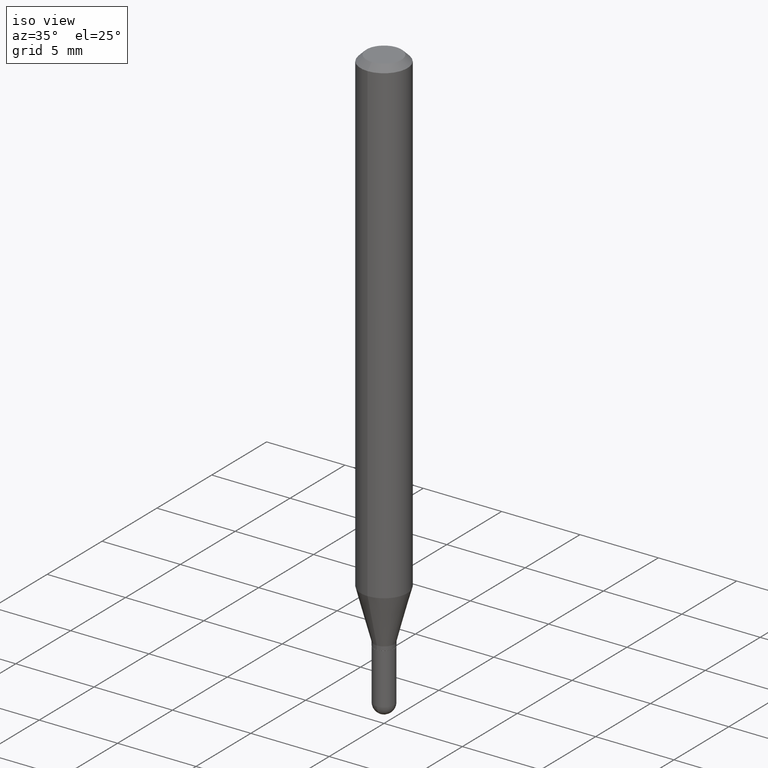
[diagram: clean part render]
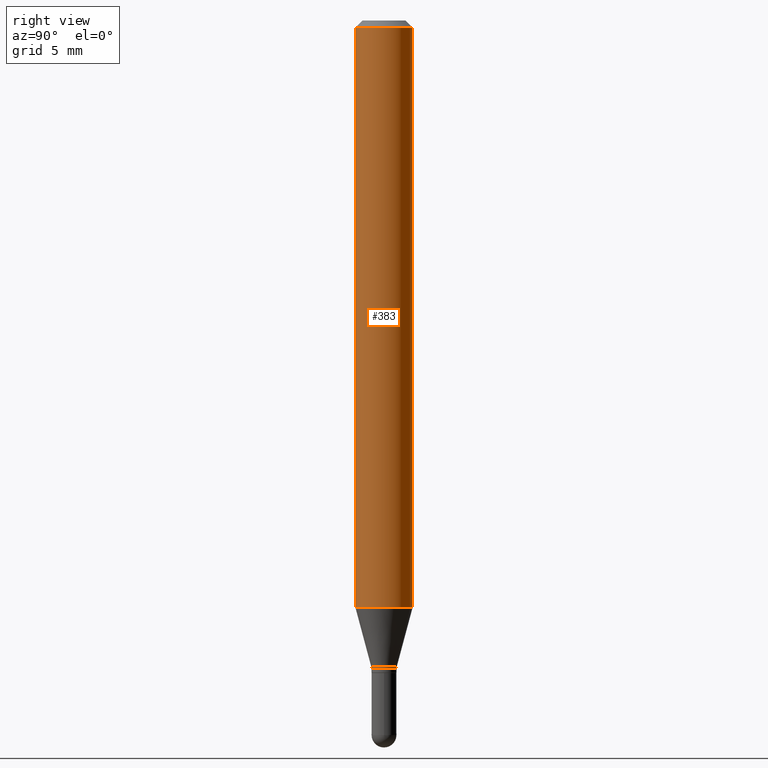
[diagram: tour spotlight — one face highlighted and labeled with its STEP entity id]
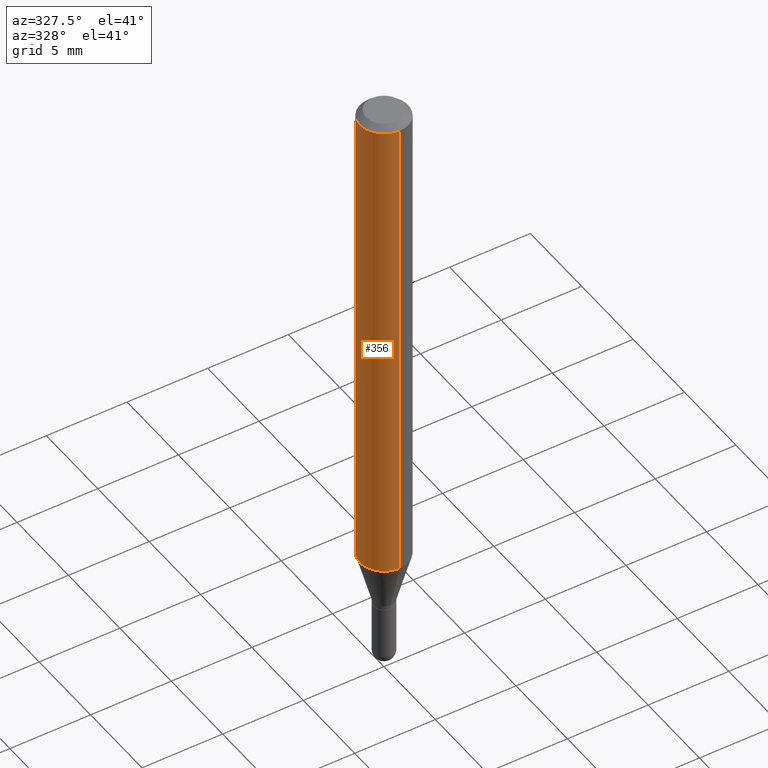
[diagram: tour spotlight — one face highlighted and labeled with its STEP entity id]
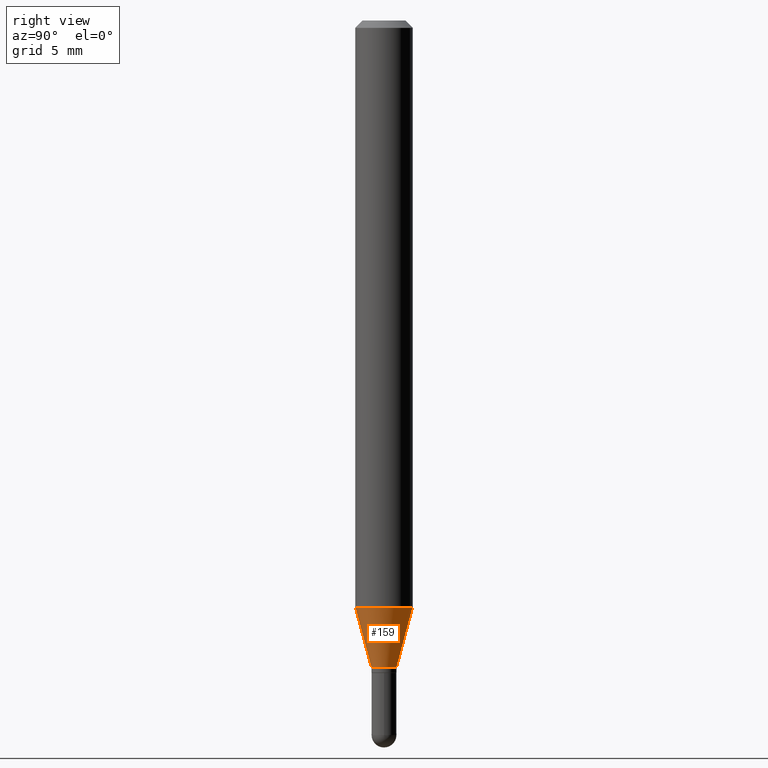
[diagram: tour spotlight — one face highlighted and labeled with its STEP entity id]
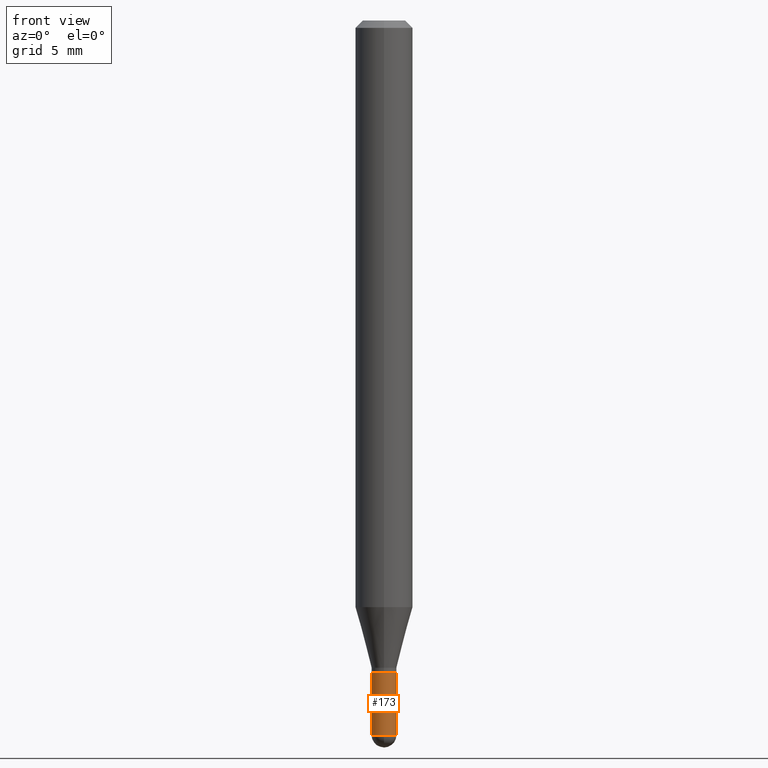
[diagram: tour spotlight — one face highlighted and labeled with its STEP entity id]
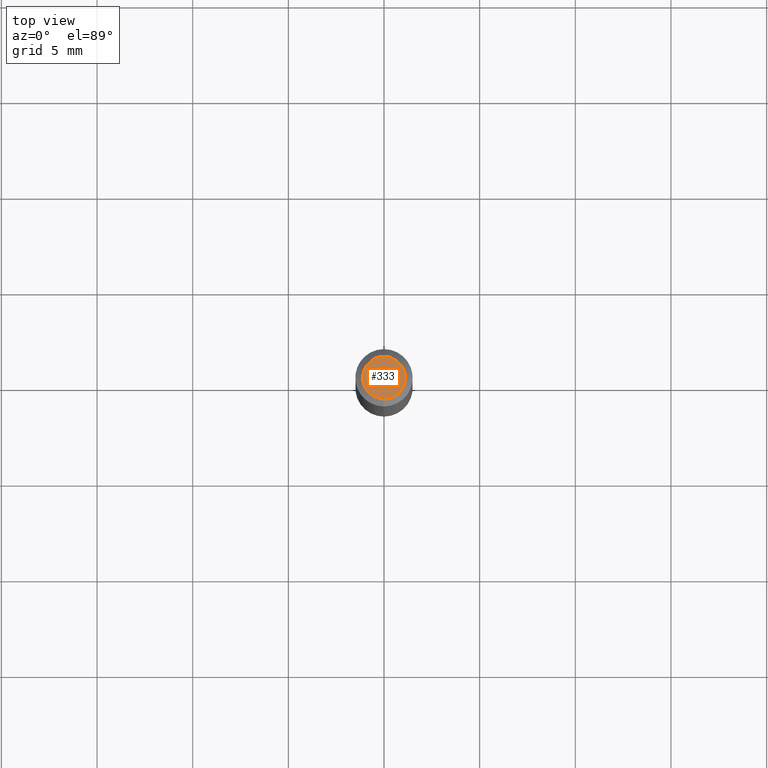
[diagram: tour spotlight — one face highlighted and labeled with its STEP entity id]
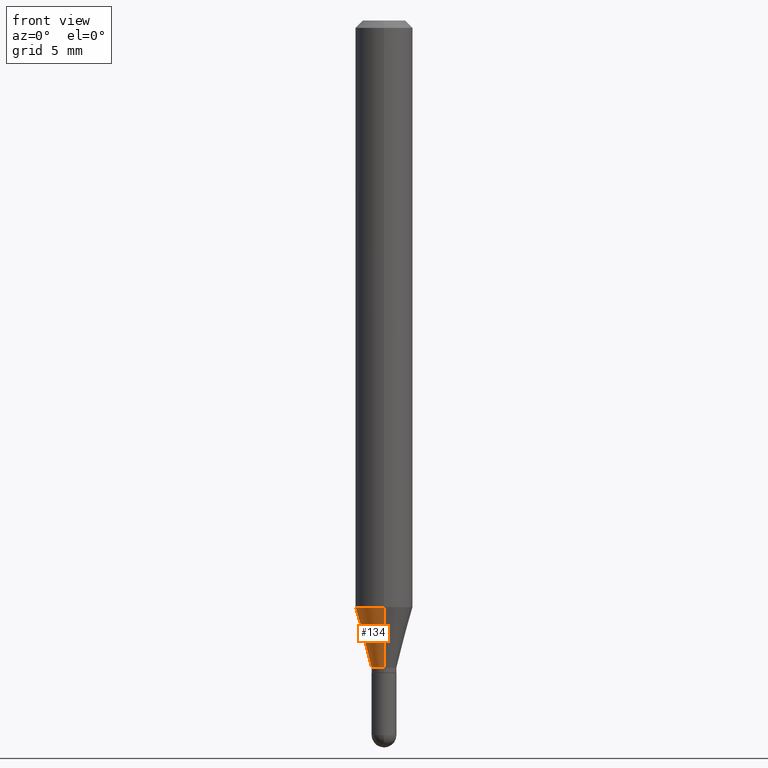
[diagram: tour spotlight — one face highlighted and labeled with its STEP entity id]
A machine part: a face-by-face anatomy tour. The part has 17 B-rep faces; the first image is the clean iso view, then the 6 largest visible faces are spotlighted one at a time (largest first), each with its STEP entity span.

Face 1 — right view, entity #383. In plain terms, the highlighted cylindrical surface (edge-blend (fillet) strip) has radius 1.4999 mm, axis along (-0, 0, 1).
Definition (entity closure, byte-faithful):
#22 = EDGE_CURVE ( 'NONE', #91, #501, #325, .T. ) ;
#26 = DIRECTION ( 'NONE',  ( -2.445504211915057935E-29, 3.491430635822728972E-15, 1.000000000000000000 ) ) ;
#71 = CARTESIAN_POINT ( 'NONE',  ( 2.952366508029308546E-29, -4.215074676251890726E-15, -1.207262900486820278 ) ) ;
#72 = EDGE_CURVE ( 'NONE', #107, #361, #509, .T. ) ;
#77 = CARTESIAN_POINT ( 'NONE',  ( 4.195754854663390985E-16, 0.05904999999999999832, -2.061689790453321353E-16 ) ) ;
#80 = DIRECTION ( 'NONE',  ( -2.445504211915058215E-29, 3.491430635822729367E-15, 1.000000000000000000 ) ) ;
#91 = VERTEX_POINT ( 'NONE', #337 ) ;
#96 = AXIS2_PLACEMENT_3D ( 'NONE', #71, #223, #114 ) ;
#106 = FACE_OUTER_BOUND ( 'NONE', #239, .T. ) ;
#107 = VERTEX_POINT ( 'NONE', #145 ) ;
#110 = VECTOR ( 'NONE', #80, 39.37007874015748143 ) ;
#111 = CYLINDRICAL_SURFACE ( 'NONE', #261, 0.05904999999999999832 ) ;
#114 = DIRECTION ( 'NONE',  ( -6.982962677686265922E-15, -1.000000000000000000, 4.626330217890369336E-15 ) ) ;
#145 = CARTESIAN_POINT ( 'NONE',  ( -4.123439461173445490E-16, -0.05905000000000423105, -1.207262900486820056 ) ) ;
#147 = DIRECTION ( 'NONE',  ( -6.982962677686265922E-15, -1.000000000000000000, 3.491430635822728972E-15 ) ) ;
#155 = DIRECTION ( 'NONE',  ( -2.445504211915058215E-29, 3.491430635822729367E-15, 1.000000000000000000 ) ) ;
#182 = CARTESIAN_POINT ( 'NONE',  ( 0.000000000000000000, 0.000000000000000000, 0.000000000000000000 ) ) ;
#190 = EDGE_CURVE ( 'NONE', #107, #91, #443, .T. ) ;
#221 = ORIENTED_EDGE ( 'NONE', *, *, #411, .T. ) ;
#223 = DIRECTION ( 'NONE',  ( -2.445504211915057935E-29, 3.491430635822728972E-15, 1.000000000000000000 ) ) ;
#235 = ORIENTED_EDGE ( 'NONE', *, *, #22, .F. ) ;
#239 = EDGE_LOOP ( 'NONE', ( #468, #221, #235, #436 ) ) ;
#250 = VECTOR ( 'NONE', #155, 39.37007874015748143 ) ;
#261 = AXIS2_PLACEMENT_3D ( 'NONE', #182, #26, #147 ) ;
#297 = DIRECTION ( 'NONE',  ( -2.445504211915057935E-29, 3.491430635822728972E-15, 1.000000000000000000 ) ) ;
#301 = CARTESIAN_POINT ( 'NONE',  ( 3.668256317872609375E-31, -5.237145953734125432E-17, -0.01500000000000009139 ) ) ;
#325 = CIRCLE ( 'NONE', #330, 0.05904999999999999832 ) ;
#330 = AXIS2_PLACEMENT_3D ( 'NONE', #301, #297, #456 ) ;
#337 = CARTESIAN_POINT ( 'NONE',  ( -4.123439461173736383E-16, -0.05905000000000005383, -0.01499999999999988495 ) ) ;
#361 = VERTEX_POINT ( 'NONE', #420 ) ;
#383 = ADVANCED_FACE ( 'NONE', ( #106 ), #111, .T. ) ;
#407 = CARTESIAN_POINT ( 'NONE',  ( -4.123439461173739834E-16, -0.05904999999999999832, 2.061689790453321353E-16 ) ) ;
#411 = EDGE_CURVE ( 'NONE', #361, #501, #428, .T. ) ;
#420 = CARTESIAN_POINT ( 'NONE',  ( 4.195754854663684343E-16, 0.05904999999999574478, -1.207262900486820278 ) ) ;
#428 = LINE ( 'NONE', #77, #110 ) ;
#436 = ORIENTED_EDGE ( 'NONE', *, *, #190, .F. ) ;
#443 = LINE ( 'NONE', #407, #250 ) ;
#456 = DIRECTION ( 'NONE',  ( -6.982962677686265922E-15, -1.000000000000000000, 3.505890868245046092E-15 ) ) ;
#468 = ORIENTED_EDGE ( 'NONE', *, *, #72, .T. ) ;
#500 = CARTESIAN_POINT ( 'NONE',  ( 4.195754854663688780E-16, 0.05904999999999994975, -0.01500000000000029955 ) ) ;
#501 = VERTEX_POINT ( 'NONE', #500 ) ;
#509 = CIRCLE ( 'NONE', #96, 0.05904999999999999832 ) ;

Face 2 — auxiliary view, entity #356. In plain terms, the highlighted cylindrical surface (edge-blend (fillet) strip) has radius 1.4999 mm, axis along (-0, 0, 1).
Definition (entity closure, byte-faithful):
#15 = ORIENTED_EDGE ( 'NONE', *, *, #199, .F. ) ;
#24 = AXIS2_PLACEMENT_3D ( 'NONE', #388, #143, #390 ) ;
#32 = CIRCLE ( 'NONE', #170, 0.05904999999999999832 ) ;
#33 = DIRECTION ( 'NONE',  ( -2.445504211915057935E-29, 3.491430635822728972E-15, 1.000000000000000000 ) ) ;
#34 = AXIS2_PLACEMENT_3D ( 'NONE', #104, #33, #258 ) ;
#77 = CARTESIAN_POINT ( 'NONE',  ( 4.195754854663390985E-16, 0.05904999999999999832, -2.061689790453321353E-16 ) ) ;
#80 = DIRECTION ( 'NONE',  ( -2.445504211915058215E-29, 3.491430635822729367E-15, 1.000000000000000000 ) ) ;
#91 = VERTEX_POINT ( 'NONE', #337 ) ;
#93 = DIRECTION ( 'NONE',  ( -2.445504211915057935E-29, 3.491430635822728972E-15, 1.000000000000000000 ) ) ;
#104 = CARTESIAN_POINT ( 'NONE',  ( 0.000000000000000000, 0.000000000000000000, 0.000000000000000000 ) ) ;
#107 = VERTEX_POINT ( 'NONE', #145 ) ;
#110 = VECTOR ( 'NONE', #80, 39.37007874015748143 ) ;
#116 = ORIENTED_EDGE ( 'NONE', *, *, #190, .T. ) ;
#125 = EDGE_CURVE ( 'NONE', #361, #107, #245, .T. ) ;
#143 = DIRECTION ( 'NONE',  ( -2.445504211915057935E-29, 3.491430635822728972E-15, 1.000000000000000000 ) ) ;
#145 = CARTESIAN_POINT ( 'NONE',  ( -4.123439461173445490E-16, -0.05905000000000423105, -1.207262900486820056 ) ) ;
#155 = DIRECTION ( 'NONE',  ( -2.445504211915058215E-29, 3.491430635822729367E-15, 1.000000000000000000 ) ) ;
#165 = EDGE_LOOP ( 'NONE', ( #326, #364, #116, #15 ) ) ;
#170 = AXIS2_PLACEMENT_3D ( 'NONE', #198, #93, #279 ) ;
#190 = EDGE_CURVE ( 'NONE', #107, #91, #443, .T. ) ;
#198 = CARTESIAN_POINT ( 'NONE',  ( 3.668256317872609375E-31, -5.237145953734125432E-17, -0.01500000000000009139 ) ) ;
#199 = EDGE_CURVE ( 'NONE', #501, #91, #32, .T. ) ;
#218 = FACE_OUTER_BOUND ( 'NONE', #165, .T. ) ;
#245 = CIRCLE ( 'NONE', #24, 0.05904999999999999832 ) ;
#250 = VECTOR ( 'NONE', #155, 39.37007874015748143 ) ;
#258 = DIRECTION ( 'NONE',  ( -6.982962677686265922E-15, -1.000000000000000000, 3.491430635822728972E-15 ) ) ;
#279 = DIRECTION ( 'NONE',  ( -6.982962677686265922E-15, -1.000000000000000000, 3.505890868245046092E-15 ) ) ;
#326 = ORIENTED_EDGE ( 'NONE', *, *, #411, .F. ) ;
#337 = CARTESIAN_POINT ( 'NONE',  ( -4.123439461173736383E-16, -0.05905000000000005383, -0.01499999999999988495 ) ) ;
#356 = ADVANCED_FACE ( 'NONE', ( #218 ), #378, .T. ) ;
#361 = VERTEX_POINT ( 'NONE', #420 ) ;
#364 = ORIENTED_EDGE ( 'NONE', *, *, #125, .T. ) ;
#378 = CYLINDRICAL_SURFACE ( 'NONE', #34, 0.05904999999999999832 ) ;
#388 = CARTESIAN_POINT ( 'NONE',  ( 2.952366508029308546E-29, -4.215074676251890726E-15, -1.207262900486820278 ) ) ;
#390 = DIRECTION ( 'NONE',  ( -6.982962677686265922E-15, -1.000000000000000000, 4.626330217890369336E-15 ) ) ;
#407 = CARTESIAN_POINT ( 'NONE',  ( -4.123439461173739834E-16, -0.05904999999999999832, 2.061689790453321353E-16 ) ) ;
#411 = EDGE_CURVE ( 'NONE', #361, #501, #428, .T. ) ;
#420 = CARTESIAN_POINT ( 'NONE',  ( 4.195754854663684343E-16, 0.05904999999999574478, -1.207262900486820278 ) ) ;
#428 = LINE ( 'NONE', #77, #110 ) ;
#443 = LINE ( 'NONE', #407, #250 ) ;
#500 = CARTESIAN_POINT ( 'NONE',  ( 4.195754854663688780E-16, 0.05904999999999994975, -0.01500000000000029955 ) ) ;
#501 = VERTEX_POINT ( 'NONE', #500 ) ;

Face 3 — right view, entity #159. In plain terms, the highlighted conical surface has half-angle 15 deg.
Definition (entity closure, byte-faithful):
#12 = ORIENTED_EDGE ( 'NONE', *, *, #72, .F. ) ;
#16 = DIRECTION ( 'NONE',  ( -2.445504211915057935E-29, 3.491430635822728972E-15, 1.000000000000000000 ) ) ;
#30 = CARTESIAN_POINT ( 'NONE',  ( -1.787638445487334432E-16, -0.02560000000000431028, -1.332100000000000062 ) ) ;
#65 = VECTOR ( 'NONE', #503, 39.37007874015748143 ) ;
#71 = CARTESIAN_POINT ( 'NONE',  ( 2.952366508029308546E-29, -4.215074676251890726E-15, -1.207262900486820278 ) ) ;
#72 = EDGE_CURVE ( 'NONE', #107, #361, #509, .T. ) ;
#96 = AXIS2_PLACEMENT_3D ( 'NONE', #71, #223, #114 ) ;
#98 = EDGE_CURVE ( 'NONE', #483, #406, #350, .T. ) ;
#107 = VERTEX_POINT ( 'NONE', #145 ) ;
#112 = CARTESIAN_POINT ( 'NONE',  ( 3.257656160692049411E-29, -4.650934749979458019E-15, -1.332100000000000062 ) ) ;
#114 = DIRECTION ( 'NONE',  ( -6.982962677686265922E-15, -1.000000000000000000, 4.626330217890369336E-15 ) ) ;
#140 = CARTESIAN_POINT ( 'NONE',  ( 1.818989403546157563E-16, 0.02559999999999500522, -1.332100000000000062 ) ) ;
#144 = CARTESIAN_POINT ( 'NONE',  ( -1.787638445487334432E-16, -0.02560000000000431028, -1.332100000000000062 ) ) ;
#145 = CARTESIAN_POINT ( 'NONE',  ( -4.123439461173445490E-16, -0.05905000000000423105, -1.207262900486820056 ) ) ;
#159 = ADVANCED_FACE ( 'NONE', ( #506 ), #412, .T. ) ;
#164 = ORIENTED_EDGE ( 'NONE', *, *, #472, .T. ) ;
#179 = LINE ( 'NONE', #140, #65 ) ;
#223 = DIRECTION ( 'NONE',  ( -2.445504211915057935E-29, 3.491430635822728972E-15, 1.000000000000000000 ) ) ;
#254 = DIRECTION ( 'NONE',  ( -6.982962677686265922E-15, -1.000000000000000000, 0.000000000000000000 ) ) ;
#268 = ORIENTED_EDGE ( 'NONE', *, *, #465, .F. ) ;
#277 = ORIENTED_EDGE ( 'NONE', *, *, #98, .T. ) ;
#281 = DIRECTION ( 'NONE',  ( -6.982962677686265922E-15, -1.000000000000000000, 0.000000000000000000 ) ) ;
#284 = AXIS2_PLACEMENT_3D ( 'NONE', #112, #494, #254 ) ;
#300 = CARTESIAN_POINT ( 'NONE',  ( 3.007372129104922925E-16, 0.02559999999999500522, -1.332100000000000062 ) ) ;
#342 = LINE ( 'NONE', #30, #373 ) ;
#350 = CIRCLE ( 'NONE', #284, 0.02559999999999965775 ) ;
#361 = VERTEX_POINT ( 'NONE', #420 ) ;
#373 = VECTOR ( 'NONE', #466, 39.37007874015748143 ) ;
#406 = VERTEX_POINT ( 'NONE', #300 ) ;
#408 = EDGE_LOOP ( 'NONE', ( #277, #164, #12, #268 ) ) ;
#412 = CONICAL_SURFACE ( 'NONE', #486, 0.02559999999999965775, 0.2617993877991502960 ) ;
#420 = CARTESIAN_POINT ( 'NONE',  ( 4.195754854663684343E-16, 0.05904999999999574478, -1.207262900486820278 ) ) ;
#426 = CARTESIAN_POINT ( 'NONE',  ( 3.257656160692049411E-29, -4.650934749979458019E-15, -1.332100000000000062 ) ) ;
#465 = EDGE_CURVE ( 'NONE', #483, #107, #342, .T. ) ;
#466 = DIRECTION ( 'NONE',  ( -1.807323732225330139E-15, -0.2588190451025181860, 0.9659258262890689783 ) ) ;
#472 = EDGE_CURVE ( 'NONE', #406, #361, #179, .T. ) ;
#483 = VERTEX_POINT ( 'NONE', #144 ) ;
#486 = AXIS2_PLACEMENT_3D ( 'NONE', #426, #16, #281 ) ;
#494 = DIRECTION ( 'NONE',  ( -2.445504211915057935E-29, 3.491430635822728972E-15, 1.000000000000000000 ) ) ;
#503 = DIRECTION ( 'NONE',  ( 1.839019923739600315E-15, 0.2588190451025249583, 0.9659258262890670910 ) ) ;
#506 = FACE_OUTER_BOUND ( 'NONE', #408, .T. ) ;
#509 = CIRCLE ( 'NONE', #96, 0.05904999999999999832 ) ;

Face 4 — front view, entity #173. In plain terms, the highlighted cylindrical surface (edge-blend (fillet) strip) has radius 0.6502 mm, axis along (-0, 0, 1).
Definition (entity closure, byte-faithful):
#1 = VERTEX_POINT ( 'NONE', #137 ) ;
#2 = DIRECTION ( 'NONE',  ( 1.000000000000000000, -6.982962677686267499E-15, 4.876176775795935232E-29 ) ) ;
#6 = CYLINDRICAL_SURFACE ( 'NONE', #44, 0.02560000000000000817 ) ;
#8 = VERTEX_POINT ( 'NONE', #379 ) ;
#25 = AXIS2_PLACEMENT_3D ( 'NONE', #222, #384, #340 ) ;
#27 = EDGE_LOOP ( 'NONE', ( #352, #382, #188, #480, #280 ) ) ;
#44 = AXIS2_PLACEMENT_3D ( 'NONE', #89, #196, #2 ) ;
#48 = FACE_OUTER_BOUND ( 'NONE', #27, .T. ) ;
#54 = CIRCLE ( 'NONE', #25, 0.02560000000000001164 ) ;
#60 = EDGE_CURVE ( 'NONE', #8, #1, #109, .T. ) ;
#84 = AXIS2_PLACEMENT_3D ( 'NONE', #403, #359, #157 ) ;
#85 = EDGE_CURVE ( 'NONE', #192, #115, #191, .T. ) ;
#89 = CARTESIAN_POINT ( 'NONE',  ( 0.000000000000000000, 0.000000000000000000, 0.000000000000000000 ) ) ;
#97 = CIRCLE ( 'NONE', #138, 0.02560000000000000470 ) ;
#105 = DIRECTION ( 'NONE',  ( -2.445468806185136877E-29, 3.491481338843145188E-15, 1.000000000000000000 ) ) ;
#109 = LINE ( 'NONE', #180, #421 ) ;
#115 = VERTEX_POINT ( 'NONE', #259 ) ;
#117 = DIRECTION ( 'NONE',  ( 1.000000000000000000, -6.982962677686263555E-15, 0.000000000000000000 ) ) ;
#137 = CARTESIAN_POINT ( 'NONE',  ( -0.02560000000000000470, -4.729044136795240808E-15, -1.342600000000000016 ) ) ;
#138 = AXIS2_PLACEMENT_3D ( 'NONE', #470, #354, #117 ) ;
#157 = DIRECTION ( 'NONE',  ( 1.000000000000000000, -6.982962677686261189E-15, 0.000000000000000000 ) ) ;
#173 = ADVANCED_FACE ( 'NONE', ( #48 ), #6, .T. ) ;
#180 = CARTESIAN_POINT ( 'NONE',  ( -0.02560000000000000817, 1.818989403545857056E-16, -1.259247383105256314E-30 ) ) ;
#188 = ORIENTED_EDGE ( 'NONE', *, *, #490, .T. ) ;
#191 = LINE ( 'NONE', #422, #404 ) ;
#192 = VERTEX_POINT ( 'NONE', #469 ) ;
#196 = DIRECTION ( 'NONE',  ( -2.445468806185136597E-29, 3.491481338843145583E-15, 1.000000000000000000 ) ) ;
#222 = CARTESIAN_POINT ( 'NONE',  ( 3.596061879495243061E-29, -5.134223308768844733E-15, -1.470499999999999696 ) ) ;
#228 = EDGE_CURVE ( 'NONE', #8, #267, #298, .T. ) ;
#231 = DIRECTION ( 'NONE',  ( -2.445468806185136877E-29, 3.491481338843145188E-15, 1.000000000000000000 ) ) ;
#259 = CARTESIAN_POINT ( 'NONE',  ( 0.02560000000000000470, -4.866426690079575830E-15, -1.342600000000000016 ) ) ;
#267 = VERTEX_POINT ( 'NONE', #314 ) ;
#280 = ORIENTED_EDGE ( 'NONE', *, *, #504, .F. ) ;
#298 = CIRCLE ( 'NONE', #84, 0.02560000000000001164 ) ;
#314 = CARTESIAN_POINT ( 'NONE',  ( -1.787638445487327776E-16, -0.02560000000000517764, -1.470499999999999696 ) ) ;
#340 = DIRECTION ( 'NONE',  ( 1.000000000000000000, -6.982962677686261189E-15, 0.000000000000000000 ) ) ;
#352 = ORIENTED_EDGE ( 'NONE', *, *, #60, .F. ) ;
#354 = DIRECTION ( 'NONE',  ( -2.445468806185136597E-29, 3.491481338843145583E-15, 1.000000000000000000 ) ) ;
#359 = DIRECTION ( 'NONE',  ( -2.445468806185136597E-29, 3.491481338843145583E-15, 1.000000000000000000 ) ) ;
#379 = CARTESIAN_POINT ( 'NONE',  ( -0.02560000000000001164, -4.729044136795240808E-15, -1.470499999999999696 ) ) ;
#382 = ORIENTED_EDGE ( 'NONE', *, *, #228, .T. ) ;
#384 = DIRECTION ( 'NONE',  ( -2.445468806185136597E-29, 3.491481338843145583E-15, 1.000000000000000000 ) ) ;
#403 = CARTESIAN_POINT ( 'NONE',  ( 3.596061879495243061E-29, -5.134223308768844733E-15, -1.470499999999999696 ) ) ;
#404 = VECTOR ( 'NONE', #105, 39.37007874015748143 ) ;
#421 = VECTOR ( 'NONE', #231, 39.37007874015748143 ) ;
#422 = CARTESIAN_POINT ( 'NONE',  ( 0.02560000000000000817, -1.787638445487684982E-16, 1.248301254603759867E-30 ) ) ;
#469 = CARTESIAN_POINT ( 'NONE',  ( 0.02560000000000001164, -5.089706921698594420E-15, -1.470499999999999696 ) ) ;
#470 = CARTESIAN_POINT ( 'NONE',  ( 3.283286419184164083E-29, -4.687662845530807554E-15, -1.342600000000000016 ) ) ;
#480 = ORIENTED_EDGE ( 'NONE', *, *, #85, .T. ) ;
#490 = EDGE_CURVE ( 'NONE', #267, #192, #54, .T. ) ;
#504 = EDGE_CURVE ( 'NONE', #1, #115, #97, .T. ) ;

Face 5 — top view, entity #333. In plain terms, the highlighted planar face has unit normal (0, -0, -1).
Definition (entity closure, byte-faithful):
#17 = EDGE_CURVE ( 'NONE', #510, #377, #476, .T. ) ;
#49 = ORIENTED_EDGE ( 'NONE', *, *, #94, .T. ) ;
#52 = EDGE_LOOP ( 'NONE', ( #419, #49 ) ) ;
#69 = DIRECTION ( 'NONE',  ( -2.445504211915057935E-29, 3.491430635822728972E-15, 1.000000000000000000 ) ) ;
#94 = EDGE_CURVE ( 'NONE', #377, #510, #386, .T. ) ;
#135 = DIRECTION ( 'NONE',  ( 2.445504211915057654E-29, -3.491430635822729367E-15, -1.000000000000000000 ) ) ;
#203 = AXIS2_PLACEMENT_3D ( 'NONE', #304, #256, #219 ) ;
#213 = PLANE ( 'NONE',  #246 ) ;
#219 = DIRECTION ( 'NONE',  ( -6.982962677686265133E-15, -1.000000000000000000, 3.491430635822728578E-15 ) ) ;
#246 = AXIS2_PLACEMENT_3D ( 'NONE', #329, #135, #293 ) ;
#256 = DIRECTION ( 'NONE',  ( -2.445504211915057935E-29, 3.491430635822728972E-15, 1.000000000000000000 ) ) ;
#272 = AXIS2_PLACEMENT_3D ( 'NONE', #308, #69, #385 ) ;
#290 = FACE_OUTER_BOUND ( 'NONE', #52, .T. ) ;
#293 = DIRECTION ( 'NONE',  ( 6.982962677686265922E-15, 1.000000000000000000, -3.491430635822729367E-15 ) ) ;
#304 = CARTESIAN_POINT ( 'NONE',  ( 2.241721480264448787E-45, -3.200491340412800534E-31, -9.166704638422894328E-17 ) ) ;
#308 = CARTESIAN_POINT ( 'NONE',  ( 2.241721480264448787E-45, -3.200491340412800534E-31, -9.166704638422894328E-17 ) ) ;
#329 = CARTESIAN_POINT ( 'NONE',  ( 3.075995059520799729E-16, 0.04404999999999999888, -1.996310427001056731E-16 ) ) ;
#333 = ADVANCED_FACE ( 'NONE', ( #290 ), #213, .F. ) ;
#360 = CARTESIAN_POINT ( 'NONE',  ( 3.599717260347271507E-16, 0.04404999999999999888, -2.454645658922200893E-16 ) ) ;
#377 = VERTEX_POINT ( 'NONE', #389 ) ;
#385 = DIRECTION ( 'NONE',  ( -6.982962677686265133E-15, -1.000000000000000000, 3.491430635822728578E-15 ) ) ;
#386 = CIRCLE ( 'NONE', #272, 0.04404999999999999888 ) ;
#389 = CARTESIAN_POINT ( 'NONE',  ( -3.536586717851222218E-16, -0.04404999999999999888, 6.213047312376223971E-17 ) ) ;
#419 = ORIENTED_EDGE ( 'NONE', *, *, #17, .T. ) ;
#476 = CIRCLE ( 'NONE', #203, 0.04404999999999999888 ) ;
#510 = VERTEX_POINT ( 'NONE', #360 ) ;

Face 6 — front view, entity #134. In plain terms, the highlighted conical surface has half-angle 15 deg.
Definition (entity closure, byte-faithful):
#18 = EDGE_LOOP ( 'NONE', ( #285, #512, #444, #312 ) ) ;
#24 = AXIS2_PLACEMENT_3D ( 'NONE', #388, #143, #390 ) ;
#30 = CARTESIAN_POINT ( 'NONE',  ( -1.787638445487334432E-16, -0.02560000000000431028, -1.332100000000000062 ) ) ;
#36 = EDGE_CURVE ( 'NONE', #406, #483, #132, .T. ) ;
#38 = DIRECTION ( 'NONE',  ( -2.445504211915057935E-29, 3.491430635822728972E-15, 1.000000000000000000 ) ) ;
#64 = AXIS2_PLACEMENT_3D ( 'NONE', #227, #38, #430 ) ;
#65 = VECTOR ( 'NONE', #503, 39.37007874015748143 ) ;
#75 = FACE_OUTER_BOUND ( 'NONE', #18, .T. ) ;
#107 = VERTEX_POINT ( 'NONE', #145 ) ;
#125 = EDGE_CURVE ( 'NONE', #361, #107, #245, .T. ) ;
#132 = CIRCLE ( 'NONE', #216, 0.02559999999999965775 ) ;
#134 = ADVANCED_FACE ( 'NONE', ( #75 ), #338, .T. ) ;
#140 = CARTESIAN_POINT ( 'NONE',  ( 1.818989403546157563E-16, 0.02559999999999500522, -1.332100000000000062 ) ) ;
#143 = DIRECTION ( 'NONE',  ( -2.445504211915057935E-29, 3.491430635822728972E-15, 1.000000000000000000 ) ) ;
#144 = CARTESIAN_POINT ( 'NONE',  ( -1.787638445487334432E-16, -0.02560000000000431028, -1.332100000000000062 ) ) ;
#145 = CARTESIAN_POINT ( 'NONE',  ( -4.123439461173445490E-16, -0.05905000000000423105, -1.207262900486820056 ) ) ;
#149 = DIRECTION ( 'NONE',  ( -2.445504211915057935E-29, 3.491430635822728972E-15, 1.000000000000000000 ) ) ;
#179 = LINE ( 'NONE', #140, #65 ) ;
#216 = AXIS2_PLACEMENT_3D ( 'NONE', #266, #149, #341 ) ;
#227 = CARTESIAN_POINT ( 'NONE',  ( 3.257656160692049411E-29, -4.650934749979458019E-15, -1.332100000000000062 ) ) ;
#245 = CIRCLE ( 'NONE', #24, 0.05904999999999999832 ) ;
#266 = CARTESIAN_POINT ( 'NONE',  ( 3.257656160692049411E-29, -4.650934749979458019E-15, -1.332100000000000062 ) ) ;
#285 = ORIENTED_EDGE ( 'NONE', *, *, #472, .F. ) ;
#300 = CARTESIAN_POINT ( 'NONE',  ( 3.007372129104922925E-16, 0.02559999999999500522, -1.332100000000000062 ) ) ;
#312 = ORIENTED_EDGE ( 'NONE', *, *, #125, .F. ) ;
#338 = CONICAL_SURFACE ( 'NONE', #64, 0.02559999999999965775, 0.2617993877991502960 ) ;
#341 = DIRECTION ( 'NONE',  ( -6.982962677686265922E-15, -1.000000000000000000, 0.000000000000000000 ) ) ;
#342 = LINE ( 'NONE', #30, #373 ) ;
#361 = VERTEX_POINT ( 'NONE', #420 ) ;
#373 = VECTOR ( 'NONE', #466, 39.37007874015748143 ) ;
#388 = CARTESIAN_POINT ( 'NONE',  ( 2.952366508029308546E-29, -4.215074676251890726E-15, -1.207262900486820278 ) ) ;
#390 = DIRECTION ( 'NONE',  ( -6.982962677686265922E-15, -1.000000000000000000, 4.626330217890369336E-15 ) ) ;
#406 = VERTEX_POINT ( 'NONE', #300 ) ;
#420 = CARTESIAN_POINT ( 'NONE',  ( 4.195754854663684343E-16, 0.05904999999999574478, -1.207262900486820278 ) ) ;
#430 = DIRECTION ( 'NONE',  ( -6.982962677686265922E-15, -1.000000000000000000, 0.000000000000000000 ) ) ;
#444 = ORIENTED_EDGE ( 'NONE', *, *, #465, .T. ) ;
#465 = EDGE_CURVE ( 'NONE', #483, #107, #342, .T. ) ;
#466 = DIRECTION ( 'NONE',  ( -1.807323732225330139E-15, -0.2588190451025181860, 0.9659258262890689783 ) ) ;
#472 = EDGE_CURVE ( 'NONE', #406, #361, #179, .T. ) ;
#483 = VERTEX_POINT ( 'NONE', #144 ) ;
#503 = DIRECTION ( 'NONE',  ( 1.839019923739600315E-15, 0.2588190451025249583, 0.9659258262890670910 ) ) ;
#512 = ORIENTED_EDGE ( 'NONE', *, *, #36, .T. ) ;